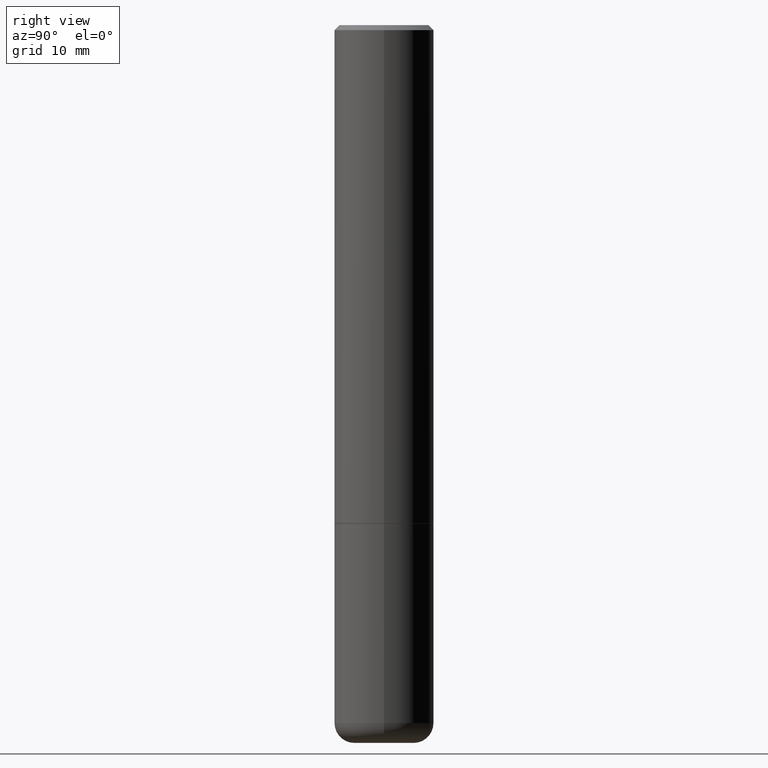
[diagram: clean part render]
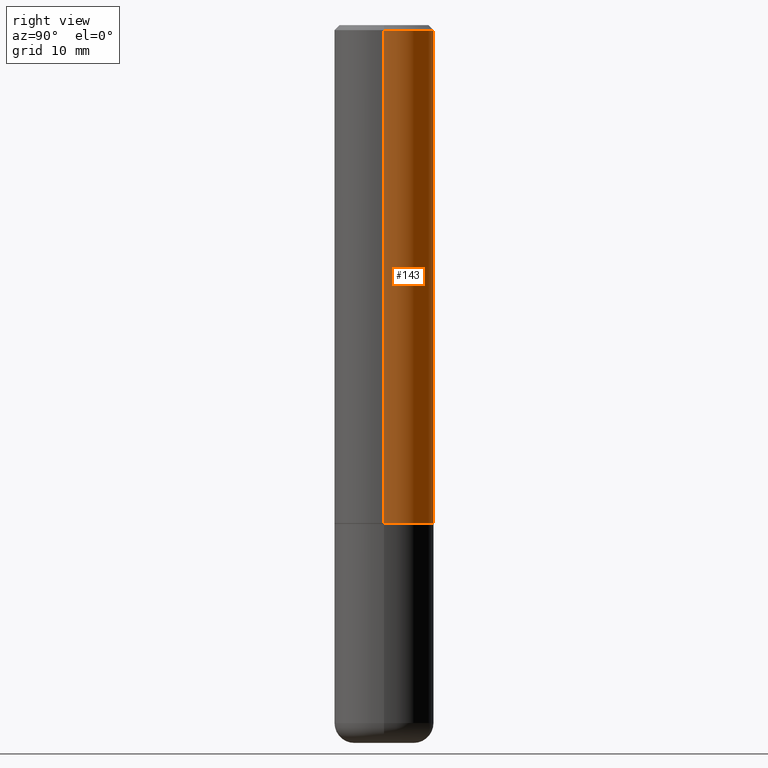
[diagram: same view with one face highlighted and labeled with its STEP entity id]
A machine part, right view. The second image highlights one B-rep face of the part: STEP entity #143.
In plain terms, the highlighted cylindrical surface (partial cylindrical patch) has radius 5 mm, axis along (-0, 0, 1).
Its self-contained STEP definition (entity closure, byte-faithful):
#4 = VERTEX_POINT ( 'NONE', #31 ) ;
#10 = DIRECTION ( 'NONE',  ( 1.000000000000000000, -6.982962677686265922E-15, 0.000000000000000000 ) ) ;
#14 = EDGE_CURVE ( 'NONE', #59, #4, #288, .T. ) ;
#21 = ORIENTED_EDGE ( 'NONE', *, *, #242, .T. ) ;
#23 = VERTEX_POINT ( 'NONE', #319 ) ;
#31 = CARTESIAN_POINT ( 'NONE',  ( 0.1968500000000000527, -1.420318657638189516E-15, -0.02000000000000004205 ) ) ;
#37 = DIRECTION ( 'NONE',  ( -2.445468806185136597E-29, 3.491481338843145583E-15, 1.000000000000000000 ) ) ;
#53 = ORIENTED_EDGE ( 'NONE', *, *, #14, .F. ) ;
#59 = VERTEX_POINT ( 'NONE', #353 ) ;
#72 = CARTESIAN_POINT ( 'NONE',  ( 4.811459876169256232E-29, -6.869489534173888700E-15, -1.967500000000000027 ) ) ;
#73 = AXIS2_PLACEMENT_3D ( 'NONE', #72, #37, #10 ) ;
#94 = DIRECTION ( 'NONE',  ( -2.445468806185136877E-29, 3.491481338843145188E-15, 1.000000000000000000 ) ) ;
#98 = DIRECTION ( 'NONE',  ( -2.445468806185136877E-29, 3.491481338843145188E-15, 1.000000000000000000 ) ) ;
#102 = ORIENTED_EDGE ( 'NONE', *, *, #275, .F. ) ;
#130 = CARTESIAN_POINT ( 'NONE',  ( -0.1968500000000000527, 1.304766576325678902E-15, -0.02000000000000004205 ) ) ;
#138 = CARTESIAN_POINT ( 'NONE',  ( 4.890937612370283668E-31, -6.982962677686305168E-17, -0.02000000000000004205 ) ) ;
#143 = ADVANCED_FACE ( 'NONE', ( #323 ), #156, .T. ) ;
#156 = CYLINDRICAL_SURFACE ( 'NONE', #224, 0.1968500000000001082 ) ;
#174 = ORIENTED_EDGE ( 'NONE', *, *, #203, .T. ) ;
#203 = EDGE_CURVE ( 'NONE', #59, #23, #350, .T. ) ;
#208 = VERTEX_POINT ( 'NONE', #130 ) ;
#223 = CARTESIAN_POINT ( 'NONE',  ( 0.1968500000000001082, -1.374596203102542397E-15, 9.598753983154305062E-30 ) ) ;
#224 = AXIS2_PLACEMENT_3D ( 'NONE', #354, #292, #395 ) ;
#242 = EDGE_CURVE ( 'NONE', #23, #208, #388, .T. ) ;
#243 = VECTOR ( 'NONE', #98, 39.37007874015748143 ) ;
#253 = EDGE_LOOP ( 'NONE', ( #174, #21, #102, #53 ) ) ;
#259 = AXIS2_PLACEMENT_3D ( 'NONE', #138, #352, #294 ) ;
#275 = EDGE_CURVE ( 'NONE', #4, #208, #335, .T. ) ;
#288 = LINE ( 'NONE', #223, #329 ) ;
#292 = DIRECTION ( 'NONE',  ( -2.445468806185136597E-29, 3.491481338843145583E-15, 1.000000000000000000 ) ) ;
#294 = DIRECTION ( 'NONE',  ( 1.000000000000000000, -6.982962677686266711E-15, 0.000000000000000000 ) ) ;
#319 = CARTESIAN_POINT ( 'NONE',  ( -0.1968500000000002192, -2.070956205131615845E-15, -1.967500000000000027 ) ) ;
#323 = FACE_OUTER_BOUND ( 'NONE', #253, .T. ) ;
#329 = VECTOR ( 'NONE', #94, 39.37007874015748143 ) ;
#335 = CIRCLE ( 'NONE', #259, 0.1968500000000000527 ) ;
#350 = CIRCLE ( 'NONE', #73, 0.1968500000000002192 ) ;
#352 = DIRECTION ( 'NONE',  ( -2.445468806185136597E-29, 3.491481338843145583E-15, 1.000000000000000000 ) ) ;
#353 = CARTESIAN_POINT ( 'NONE',  ( 0.1968500000000002192, -8.244085737276431886E-15, -1.967500000000000027 ) ) ;
#354 = CARTESIAN_POINT ( 'NONE',  ( 0.000000000000000000, 0.000000000000000000, 0.000000000000000000 ) ) ;
#388 = LINE ( 'NONE', #391, #243 ) ;
#391 = CARTESIAN_POINT ( 'NONE',  ( -0.1968500000000001082, 1.398703375343757985E-15, -9.682923725166787881E-30 ) ) ;
#395 = DIRECTION ( 'NONE',  ( 1.000000000000000000, -6.982962677686266711E-15, 4.876176775795935793E-29 ) ) ;